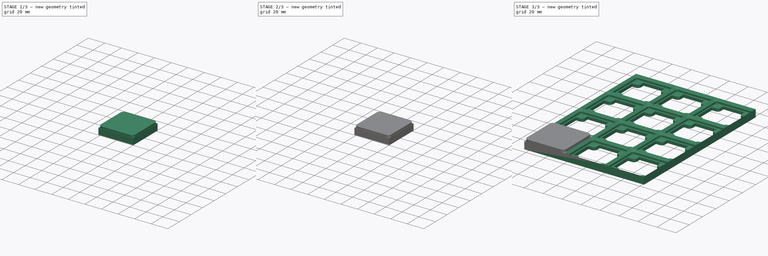
[diagram: build sequence overview — one tinted view per stage of 3, left to right]
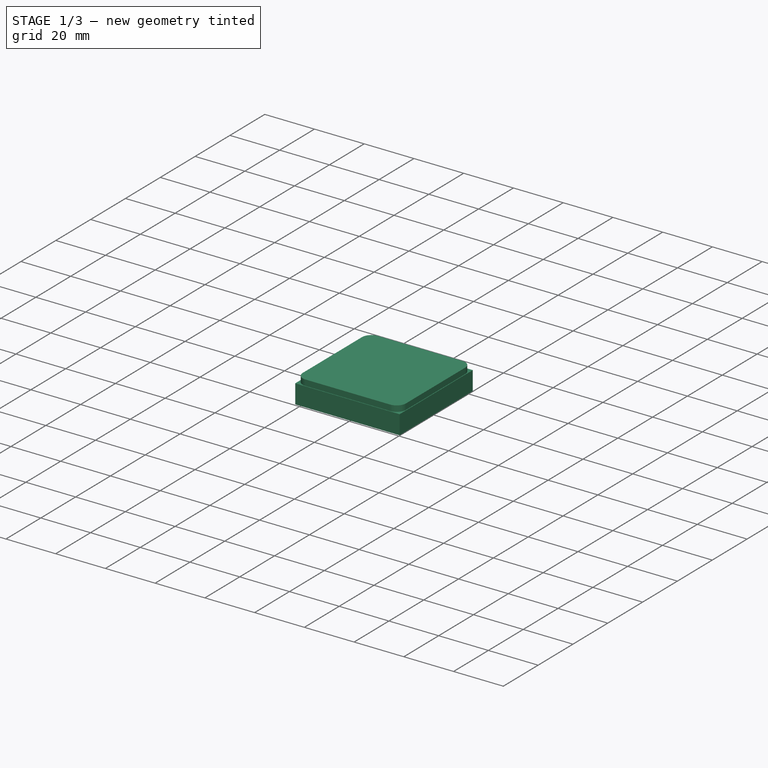
[diagram: stage 1 of 3 — iso view after this stage's code; geometry added in this stage tinted green]
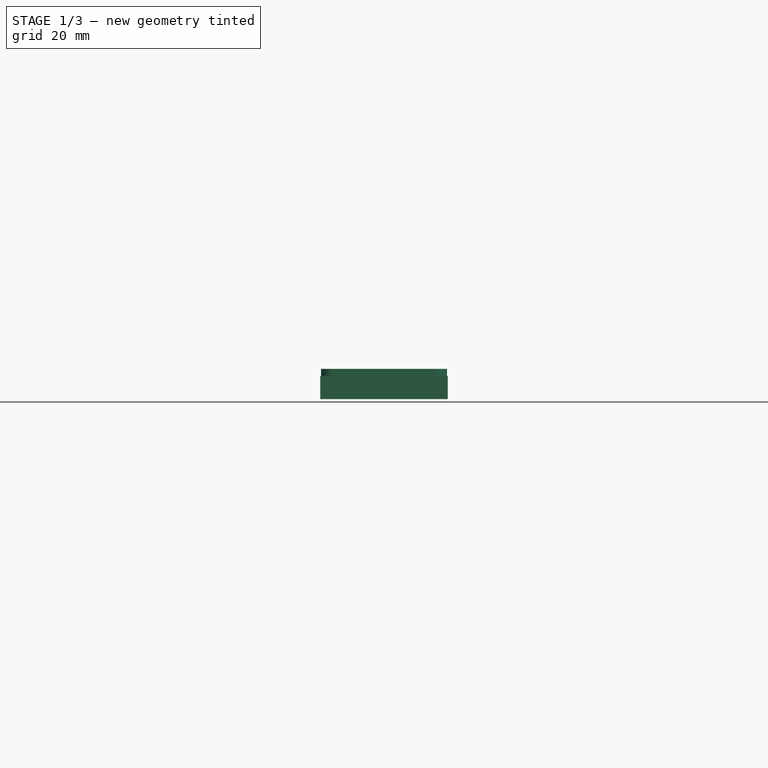
[diagram: stage 1 of 3 — front view after this stage's code; geometry added in this stage tinted green]
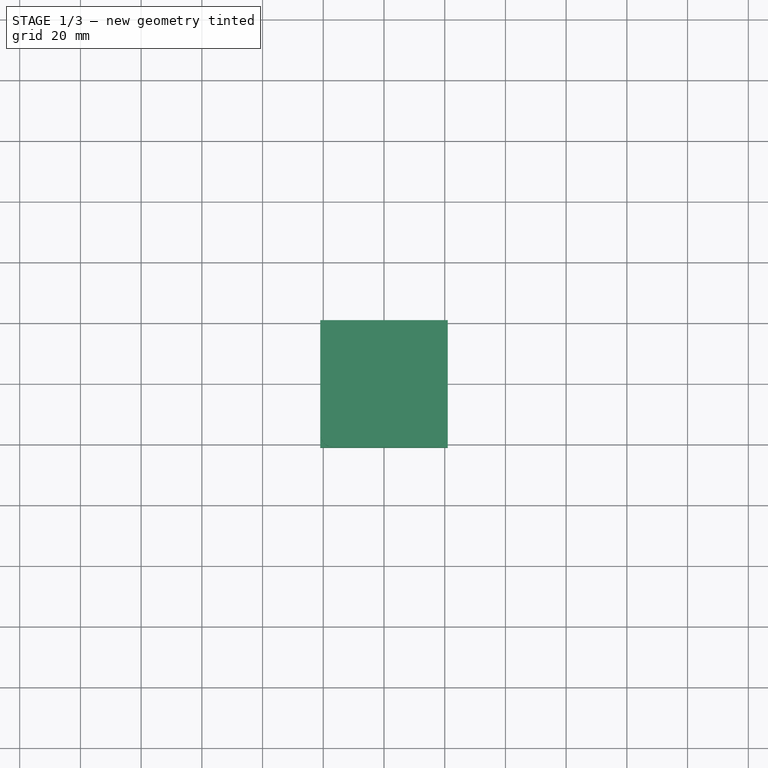
[diagram: stage 1 of 3 — top view after this stage's code; geometry added in this stage tinted green]
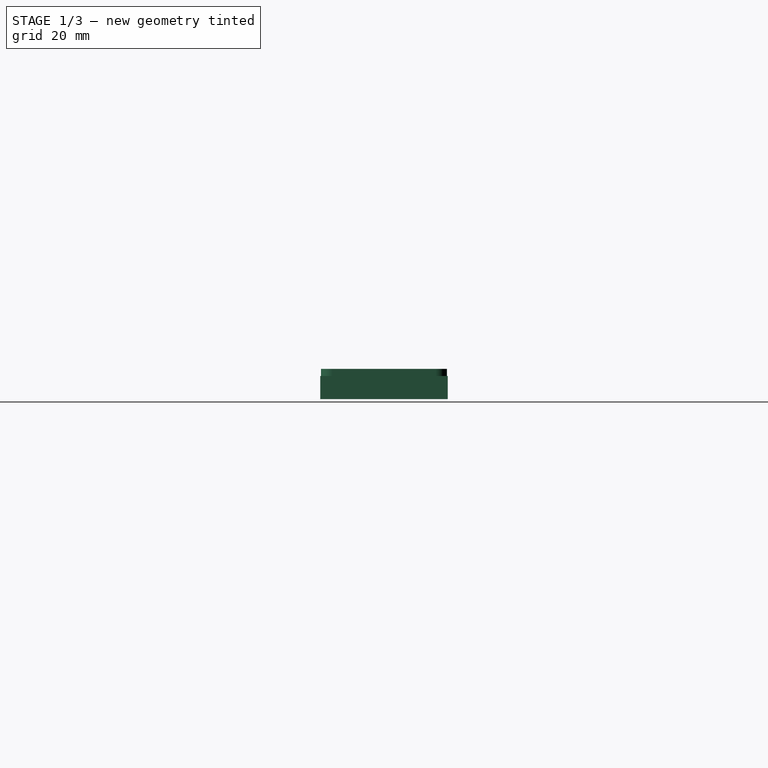
[diagram: stage 1 of 3 — right view after this stage's code; geometry added in this stage tinted green]
FCSTD DOCUMENT  (FreeCAD 1.0R38806 (Git))
Label: GridFinity_001
License: All rights reserved
LicenseURL: http://en.wikipedia.org/wiki/All_rights_reserved
objects: Sketcher::SketchObject×5, App::VarSet×2, PartDesign::Pad×2, PartDesign::LinearPattern×2, PartDesign::Body×2, PartDesign::Pocket×1, PartDesign::SubtractivePipe×1, PartDesign::MultiTransform×1, App::Part×1
note: 30 computed .brp shape members not serialized (recipe doc carries the construction recipe); baked Part::Feature solids carry a one-line shape summary decoded from their .brp

FEATURE [App::VarSet] VarSet
  Base_BaseGridX = 4
  Base_BaseGridY = 3
  Base_Base_Height = 42
  Base_Base_Width = 42
  Base_BottomHeight = 3
  Base_ProfileMiddle = 1.8
  Base_Profile_Angle = 45
  Base_Profile_Lower = 0.7
  Base_Profile_top = 2.15
  expr: Base_Base_Width = Base_Base_Height
FEATURE [Sketcher::SketchObject] Sketch
  ArcFitTolerance = 1e-06
  AttachmentSupport = -> [XY_Plane001]
  FullyConstrained = true
  MakeInternals = false
  MapMode = 5
  expr: Constraints[10] = VarSet.Base_Base_Height
  expr: Constraints[9] = VarSet.Base_Base_Width
  sketch-geometry (25):
    g0: LineSegment StartX=-21 StartY=-21 StartZ=0 EndX=21 EndY=-21 EndZ=0
    g1: LineSegment StartX=21 StartY=-21 StartZ=0 EndX=21 EndY=21 EndZ=0
    g2: LineSegment StartX=21 StartY=21 StartZ=0 EndX=-21 EndY=21 EndZ=0
    g3: LineSegment StartX=-21 StartY=21 StartZ=0 EndX=-21 EndY=-21 EndZ=0
    g4: GeomPoint [constr] X=0 Y=0 Z=0
    g5: LineSegment StartX=-18.15 StartY=11 StartZ=0 EndX=-14 EndY=11 EndZ=0
    g6: LineSegment StartX=-11 StartY=14 StartZ=0 EndX=-11 EndY=18.15 EndZ=0
    g7: LineSegment StartX=-11 StartY=18.15 StartZ=0 EndX=11 EndY=18.15 EndZ=0
    g8: LineSegment StartX=11 StartY=18.15 StartZ=0 EndX=11 EndY=14 EndZ=0
    g9: LineSegment StartX=14 StartY=11 StartZ=0 EndX=18.15 EndY=11 EndZ=0
    g10: LineSegment StartX=18.15 StartY=11 StartZ=0 EndX=18.15 EndY=-11 EndZ=0
    g11: LineSegment StartX=18.15 StartY=-11 StartZ=0 EndX=14 EndY=-11 EndZ=0
    g12: LineSegment StartX=11 StartY=-14 StartZ=0 EndX=11 EndY=-18.15 EndZ=0
    g13: LineSegment StartX=11 StartY=-18.15 StartZ=0 EndX=-11 EndY=-18.15 EndZ=0
    g14: LineSegment StartX=-11 StartY=-18.15 StartZ=0 EndX=-11 EndY=-14 EndZ=0
    g15: LineSegment StartX=-14 StartY=-11 StartZ=0 EndX=-18.15 EndY=-11 EndZ=0
    g16: LineSegment StartX=-18.15 StartY=-11 StartZ=0 EndX=-18.15 EndY=11 EndZ=0
    g17: ArcOfCircle CenterX=-14 CenterY=14 CenterZ=0 NormalX=0 NormalY=0 NormalZ=1 AngleXU=0 Radius=3 StartAngle=4.71239 EndAngle=6.28319
    g18: GeomPoint [constr] X=-11 Y=11 Z=0
    g19: ArcOfCircle CenterX=14 CenterY=14 CenterZ=0 NormalX=0 NormalY=0 NormalZ=1 AngleXU=0 Radius=3 StartAngle=3.14159 EndAngle=4.71239
    g20: GeomPoint [constr] X=11 Y=11 Z=0
    g21: ArcOfCircle CenterX=14 CenterY=-14 CenterZ=0 NormalX=0 NormalY=0 NormalZ=1 AngleXU=0 Radius=3 StartAngle=1.5708 EndAngle=3.14159
    g22: GeomPoint [constr] X=11 Y=-11 Z=0
    g23: ArcOfCircle CenterX=-14 CenterY=-14 CenterZ=0 NormalX=0 NormalY=0 NormalZ=1 AngleXU=0 Radius=3 StartAngle=0 EndAngle=1.5708
    g24: GeomPoint [constr] X=-11 Y=-11 Z=0
  constraints (63):
    c: Coincident(g0,g1)
    c: Coincident(g1,g2)
    c: Coincident(g2,g3)
    c: Coincident(g3,g0)
    c: Horizontal(g0)
    c: Horizontal(g2)
    c: Vertical(g1)
    c: Vertical(g3)
    c: Symmetric(g2,g0,g4)
    c: Distance(g1,g3) = 42
    c: Distance(g0,g2) = 42
    c: Coincident(g4,g-1)
    c: Horizontal(g5)
    c: Vertical(g6)
    c: Coincident(g6,g7)
    c: Horizontal(g7)
    c: Coincident(g7,g8)
    c: Vertical(g8)
    c: Horizontal(g9)
    c: Coincident(g9,g10)
    c: Coincident(g10,g11)
    c: Horizontal(g11)
    c: Vertical(g12)
    c: Coincident(g12,g13)
    c: Horizontal(g13)
    c: Coincident(g13,g14)
    c: Vertical(g14)
    c: Horizontal(g15)
    c: Coincident(g15,g16)
    c: Coincident(g16,g5)
    c: Vertical(g16)
    c: Vertical(g10)
    c: Equal(g7,g16)
    c: Equal(g10,g13)
    c: Symmetric(g24,g20,g4)
    c: DistanceX(g0,g15) = 2.85
    c: DistanceX(g2,g6) = 10
    c: PointOnObject(g18,g6)
    c: PointOnObject(g18,g5)
    c: Tangent(g6,g17) = -1.5708
    c: Tangent(g5,g17) = -1.5708
    c: PointOnObject(g20,g8)
    c: PointOnObject(g20,g9)
    c: Tangent(g8,g19) = -1.5708
    c: Tangent(g9,g19) = -1.5708
    c: PointOnObject(g22,g11)
    c: PointOnObject(g22,g12)
    c: Tangent(g11,g21) = -1.5708
    c: Tangent(g12,g21) = -1.5708
    c: PointOnObject(g24,g14)
    c: PointOnObject(g24,g15)
    c: Tangent(g14,g23) = -1.5708
    c: Tangent(g15,g23) = -1.5708
    c: Equal(g17,g19)
    c: Equal(g19,g23)
    c: Equal(g23,g21)
    c: Radius(g23) = 3
    c: Equal(g6,g8)
    c: Equal(g8,g5)
    c: Equal(g5,g9)
    c: Equal(g9,g11)
    c: Equal(g11,g12)
    c: Equal(g12,g14)
FEATURE [PartDesign::Pad] Pad
  Direction = (0,0,1)
  Length = 7.65
  Length2 = 10
  Profile = -> Sketch
  ReferenceAxis = -> Sketch [N_Axis]
  Refine = true
  Suppressed = false
  Type = 0
  expr: Length = VarSet.Base_BottomHeight + VarSet.Base_Profile_Lower + VarSet.Base_ProfileMiddle + VarSet.Base_Profile_top
FEATURE [PartDesign::Body] Body  label="Base"
  AllowCompound = true
  Group = -> [Sketch,Pad,Sketch001,Pocket,Sketch002,Sketch003,SubtractivePipe,MultiTransform,LinearPattern,LinearPattern001,VarSet]
  Origin = -> Origin001
  Tip = -> MultiTransform
FEATURE [App::VarSet] VarSet001
  Height = 41.5
FEATURE [Sketcher::SketchObject] Sketch004
  ArcFitTolerance = 1e-06
  AttachmentSupport = -> [XY_Plane002]
  FullyConstrained = true
  MakeInternals = false
  MapMode = 5
  sketch-geometry (10):
    g0: LineSegment StartX=-17 StartY=-20.75 StartZ=0 EndX=17 EndY=-20.75 EndZ=0
    g1: LineSegment StartX=20.75 StartY=-17 StartZ=0 EndX=20.75 EndY=17 EndZ=0
    g2: LineSegment StartX=17 StartY=20.75 StartZ=0 EndX=-17 EndY=20.75 EndZ=0
    g3: LineSegment StartX=-20.75 StartY=17 StartZ=0 EndX=-20.75 EndY=-17 EndZ=0
    g4: ArcOfCircle CenterX=-17 CenterY=-17 CenterZ=0 NormalX=0 NormalY=0 NormalZ=1 AngleXU=0 Radius=3.75 StartAngle=3.14159 EndAngle=4.71239
    g5: ArcOfCircle CenterX=17 CenterY=-17 CenterZ=0 NormalX=0 NormalY=0 NormalZ=1 AngleXU=0 Radius=3.75 StartAngle=4.71239 EndAngle=6.28319
    g6: ArcOfCircle CenterX=17 CenterY=17 CenterZ=0 NormalX=0 NormalY=0 NormalZ=1 AngleXU=0 Radius=3.75 StartAngle=0 EndAngle=1.5708
    g7: ArcOfCircle CenterX=-17 CenterY=17 CenterZ=0 NormalX=0 NormalY=0 NormalZ=1 AngleXU=0 Radius=3.75 StartAngle=1.5708 EndAngle=3.14159
    g8: GeomPoint [constr] X=20.75 Y=20.75 Z=0
    g9: GeomPoint [constr] X=8.81e-14 Y=1e-13 Z=0
  constraints (22):
    c: Tangent(g0,g4) = -1.5708
    c: Tangent(g0,g5) = -1.5708
    c: Tangent(g1,g5) = -1.5708
    c: Tangent(g1,g6) = -1.5708
    c: Tangent(g2,g6) = -1.5708
    c: Tangent(g2,g7) = -1.5708
    c: Tangent(g3,g7) = -1.5708
    c: Tangent(g3,g4) = -1.5708
    c: Horizontal(g0)
    c: Horizontal(g2)
    c: Vertical(g1)
    c: Vertical(g3)
    c: Equal(g4,g5)
    c: Equal(g5,g6)
    c: Equal(g6,g7)
    c: Symmetric(g2,g0,g9)
    c: PointOnObject(g8,g1)
    c: PointOnObject(g8,g2)
    c: Distance(g1,g3) = 41.5
    c: Radius(g5) = 3.75
    c: Coincident(g9,g-1)
    c: Equal(g3,g0)
FEATURE [PartDesign::Pad] Pad001
  Direction = (0,0,1)
  Length = 10
  Length2 = 10
  Profile = -> Sketch004
  ReferenceAxis = -> Sketch004 [N_Axis]
  Refine = true
  Suppressed = false
  Type = 0
FEATURE [PartDesign::Body] Body001  label="Bin"
  AllowCompound = true
  Group = -> [VarSet001,Sketch004,Pad001]
  Origin = -> Origin002
  Tip = -> Pad001
FEATURE [App::Part] Part
  Group = -> [Body,Body001]
  Origin = -> Origin
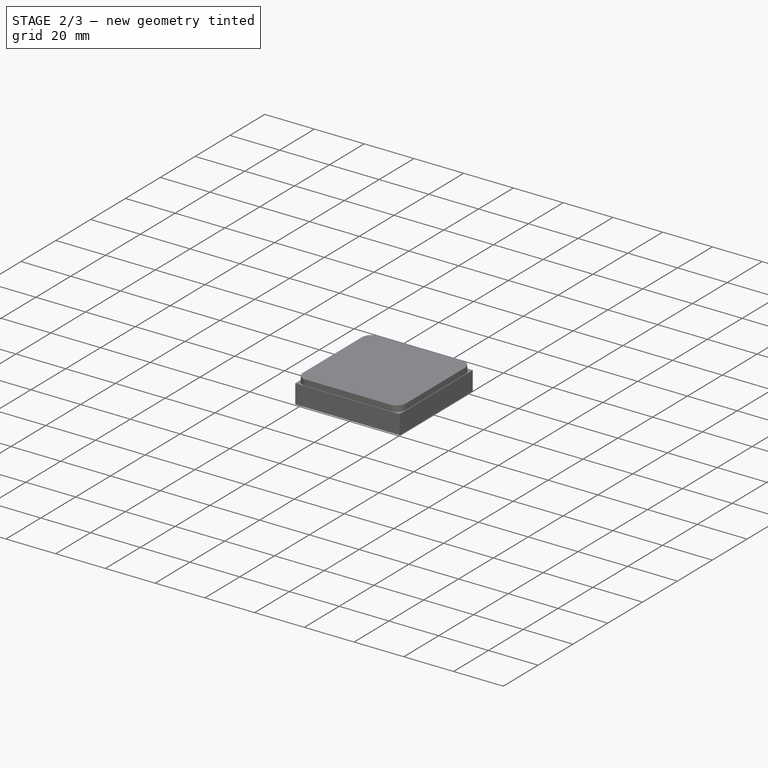
[diagram: stage 2 of 3 — iso view after this stage's code; geometry added in this stage tinted green]
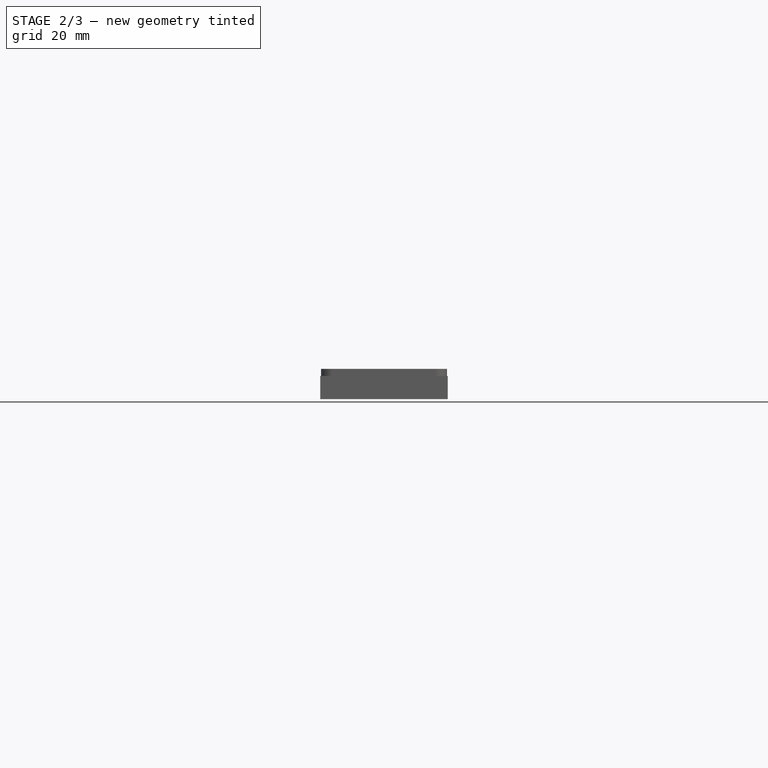
[diagram: stage 2 of 3 — front view after this stage's code; geometry added in this stage tinted green]
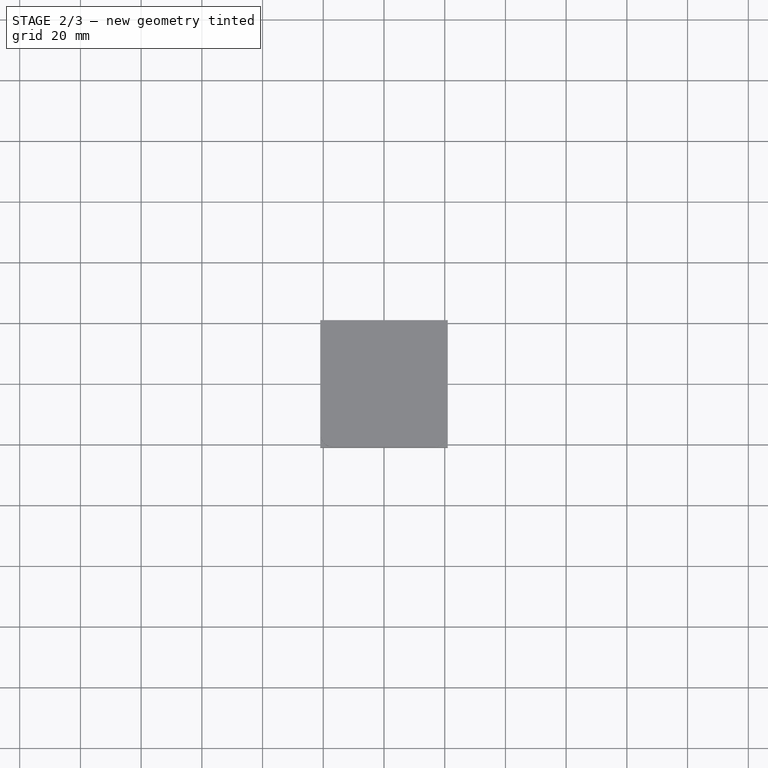
[diagram: stage 2 of 3 — top view after this stage's code; geometry added in this stage tinted green]
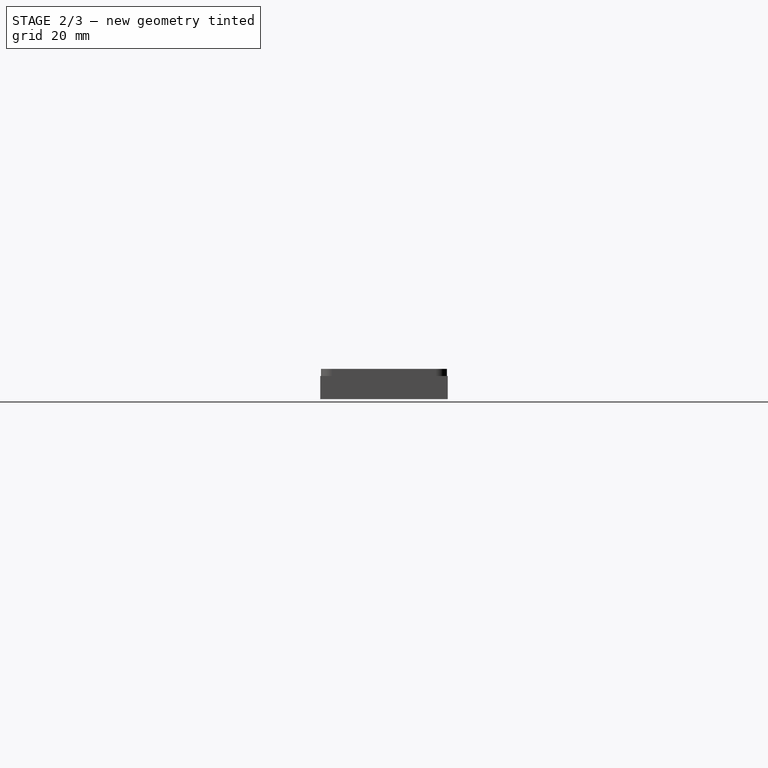
[diagram: stage 2 of 3 — right view after this stage's code; geometry added in this stage tinted green]
FEATURE [Sketcher::SketchObject] Sketch001
  ArcFitTolerance = 1e-06
  AttachmentOffset = pos=(0,0,3) rot=(0,0,1;0rad)
  AttachmentSupport = -> [XY_Plane001]
  FullyConstrained = true
  MakeInternals = false
  MapMode = 5
  Placement = pos=(0,0,3) rot=(0,0,1;0rad)
  expr: Constraints[10] = 42 / 2 - 2.85
  sketch-geometry (5):
    g0: LineSegment StartX=-18.15 StartY=-18.15 StartZ=0 EndX=18.15 EndY=-18.15 EndZ=0
    g1: LineSegment StartX=18.15 StartY=-18.15 StartZ=0 EndX=18.15 EndY=18.15 EndZ=0
    g2: LineSegment StartX=18.15 StartY=18.15 StartZ=0 EndX=-18.15 EndY=18.15 EndZ=0
    g3: LineSegment StartX=-18.15 StartY=18.15 StartZ=0 EndX=-18.15 EndY=-18.15 EndZ=0
    g4: GeomPoint [constr] X=0 Y=0 Z=0
  constraints (12):
    c: Coincident(g0,g1)
    c: Coincident(g1,g2)
    c: Coincident(g2,g3)
    c: Coincident(g3,g0)
    c: Horizontal(g0)
    c: Horizontal(g2)
    c: Vertical(g1)
    c: Vertical(g3)
    c: Symmetric(g2,g0,g4)
    c: Coincident(g4,g-1)
    c: DistanceX(g4,g0) = 18.15
    c: Equal(g2,g1)
FEATURE [PartDesign::Pocket] Pocket
  BaseFeature = -> Pad
  Direction = (0,0,-1)
  Length = 5
  Length2 = 5
  Profile = -> Sketch001
  ReferenceAxis = -> Sketch001 [N_Axis]
  Refine = true
  Reversed = true
  Suppressed = false
  Type = 0
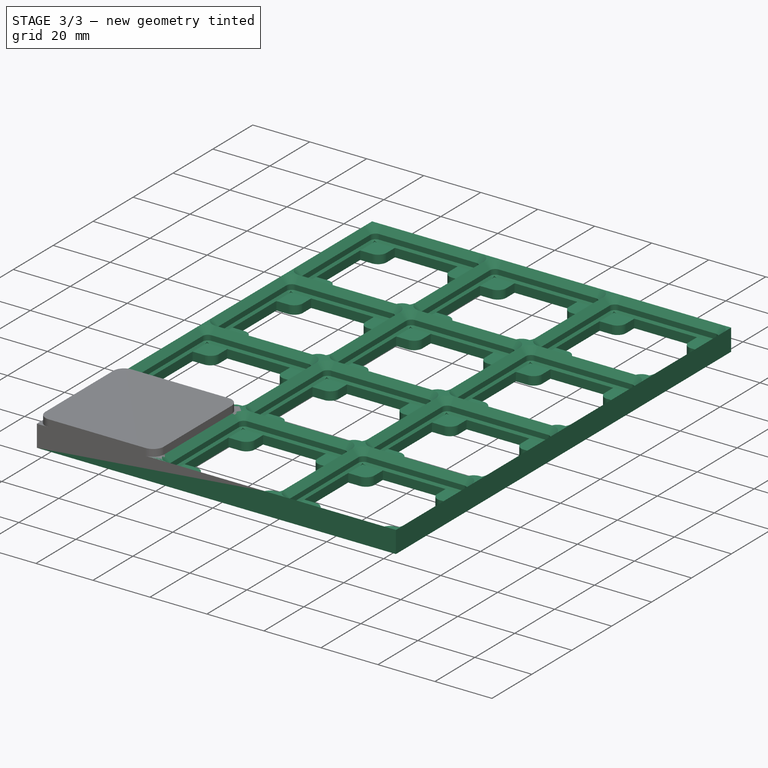
[diagram: stage 3 of 3 — iso view after this stage's code; geometry added in this stage tinted green]
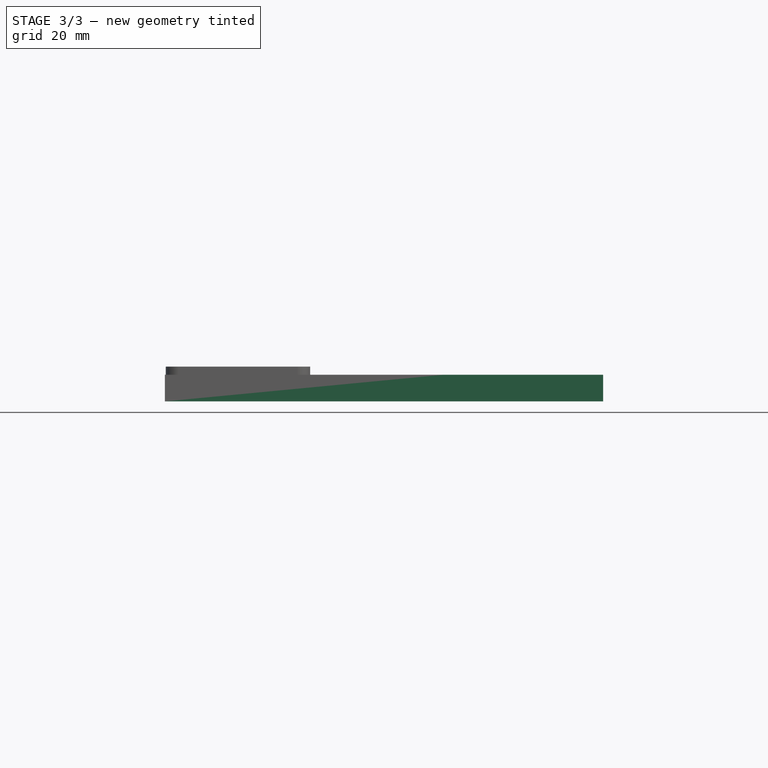
[diagram: stage 3 of 3 — front view after this stage's code; geometry added in this stage tinted green]
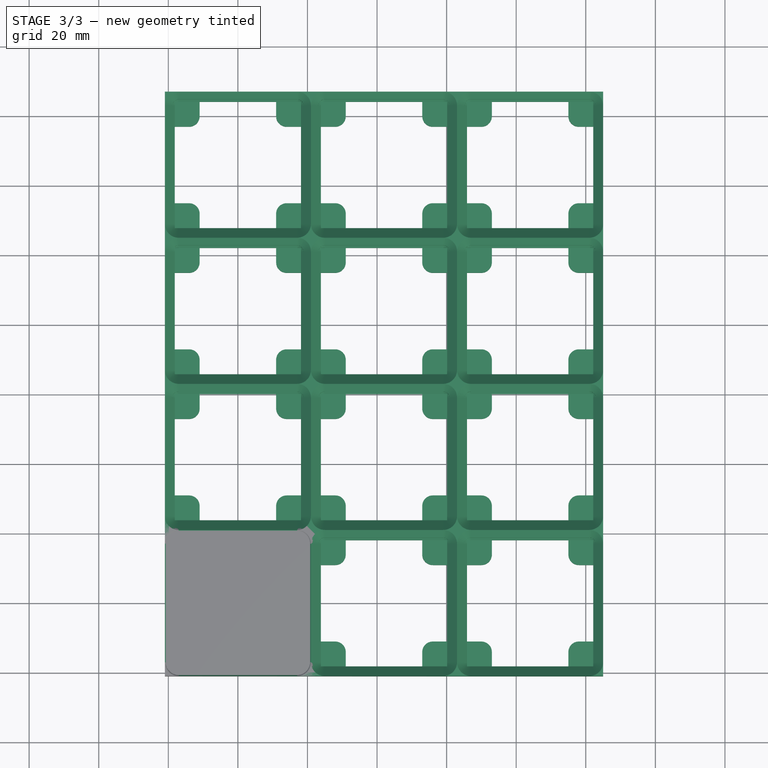
[diagram: stage 3 of 3 — top view after this stage's code; geometry added in this stage tinted green]
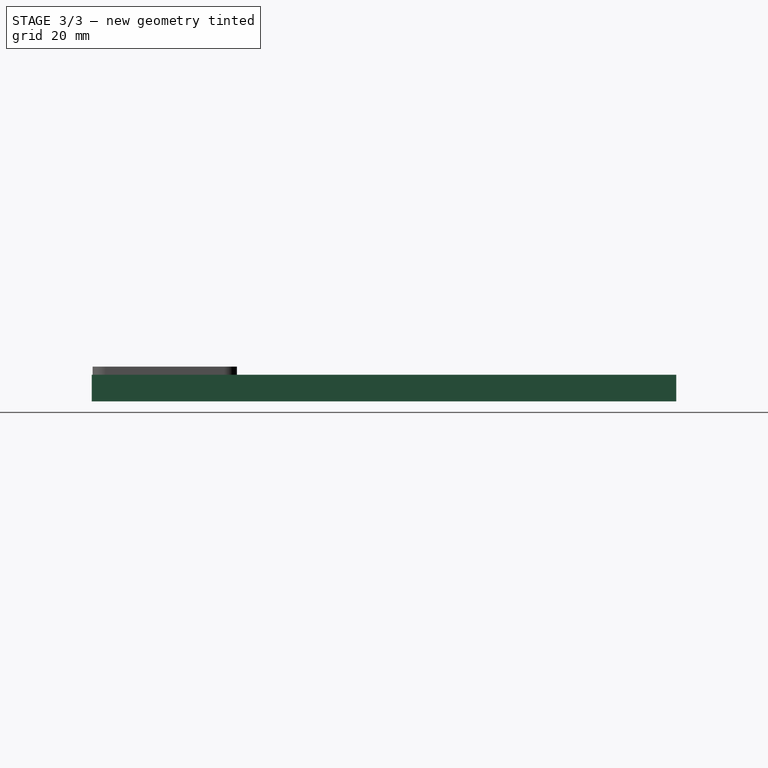
[diagram: stage 3 of 3 — right view after this stage's code; geometry added in this stage tinted green]
FEATURE [PartDesign::LinearPattern] LinearPattern
  Direction = -> Y_Axis001
  Length = 126
  Mode = 1
  Occurrences = 4
  Offset = 42
  Refine = true
  Suppressed = false
  TransformMode = 0
  expr: Occurrences = VarSet.Base_BaseGridX
  expr: Offset = VarSet.Base_Base_Height
FEATURE [PartDesign::LinearPattern] LinearPattern001
  Direction = -> X_Axis001
  Length = 84
  Mode = 1
  Occurrences = 3
  Offset = 42
  Refine = true
  Suppressed = false
  TransformMode = 0
  expr: Occurrences = VarSet.Base_BaseGridY
  expr: Offset = VarSet.Base_Base_Width
FEATURE [Sketcher::SketchObject] Sketch002
  ArcFitTolerance = 1e-06
  AttachmentSupport = -> [XZ_Plane001]
  ExternalGeometry = -> [Pocket]
  FullyConstrained = true
  MakeInternals = false
  MapMode = 5
  Placement = pos=(0,0,0) rot=(1,0,0;1.5708rad)
  sketch-geometry (5):
    g0: LineSegment StartX=21 StartY=7.65 StartZ=0 EndX=18.85 EndY=5.5 EndZ=0
    g1: LineSegment StartX=18.85 StartY=5.5 StartZ=0 EndX=18.85 EndY=3.7 EndZ=0
    g2: LineSegment StartX=18.85 StartY=3.7 StartZ=0 EndX=18.15 EndY=3 EndZ=0
    g3: LineSegment StartX=21 StartY=7.65 StartZ=0 EndX=18.15 EndY=7.65 EndZ=0
    g4: LineSegment StartX=18.15 StartY=7.65 StartZ=0 EndX=18.15 EndY=3 EndZ=0
  constraints (14):
    c: Coincident(g-3,g0)
    c: Coincident(g0,g1)
    c: Coincident(g1,g2)
    c: Coincident(g2,g-4)
    c: DistanceY(g0,g0) = 2.15
    c: Distance(g0,g1) = 1.8
    c: Vertical(g1)
    c: Parallel(g2,g0)
    c: DistanceY(g2,g1) = 0.7
    c: Coincident(g0,g3)
    c: Horizontal(g3)
    c: Coincident(g3,g4)
    c: Coincident(g4,g2)
    c: Vertical(g4)
FEATURE [Sketcher::SketchObject] Sketch003
  ArcFitTolerance = 1e-06
  AttachmentSupport = -> [XY_Plane001]
  FullyConstrained = true
  MakeInternals = false
  MapMode = 5
  sketch-geometry (10):
    g0: LineSegment StartX=-18.15 StartY=17 StartZ=0 EndX=-18.15 EndY=-17 EndZ=0
    g1: LineSegment StartX=-17 StartY=-18.15 StartZ=0 EndX=17 EndY=-18.15 EndZ=0
    g2: LineSegment StartX=18.15 StartY=-17 StartZ=0 EndX=18.15 EndY=17 EndZ=0
    g3: LineSegment StartX=17 StartY=18.15 StartZ=0 EndX=-17 EndY=18.15 EndZ=0
    g4: ArcOfCircle CenterX=-17 CenterY=17 CenterZ=0 NormalX=0 NormalY=0 NormalZ=1 AngleXU=0 Radius=1.15 StartAngle=1.5708 EndAngle=3.14159
    g5: ArcOfCircle CenterX=-17 CenterY=-17 CenterZ=0 NormalX=0 NormalY=0 NormalZ=1 AngleXU=0 Radius=1.15 StartAngle=3.14159 EndAngle=4.71239
    g6: ArcOfCircle CenterX=17 CenterY=-17 CenterZ=0 NormalX=0 NormalY=0 NormalZ=1 AngleXU=0 Radius=1.15 StartAngle=4.71239 EndAngle=6.28319
    g7: ArcOfCircle CenterX=17 CenterY=17 CenterZ=0 NormalX=0 NormalY=0 NormalZ=1 AngleXU=0 Radius=1.15 StartAngle=5e-16 EndAngle=1.5708
    g8: GeomPoint [constr] X=-18.15 Y=18.15 Z=0
    g9: GeomPoint [constr] X=18.15 Y=-18.15 Z=0
  constraints (23):
    c: Tangent(g0,g4) = -1.5708
    c: Tangent(g0,g5) = -1.5708
    c: Tangent(g1,g5) = -1.5708
    c: Tangent(g1,g6) = -1.5708
    c: Tangent(g2,g6) = -1.5708
    c: Tangent(g2,g7) = -1.5708
    c: Tangent(g3,g7) = -1.5708
    c: Tangent(g3,g4) = -1.5708
    c: Vertical(g0)
    c: Vertical(g2)
    c: Horizontal(g1)
    c: Horizontal(g3)
    c: Equal(g4,g5)
    c: Equal(g5,g6)
    c: Equal(g6,g7)
    c: PointOnObject(g8,g0)
    c: PointOnObject(g8,g3)
    c: PointOnObject(g9,g1)
    c: PointOnObject(g9,g2)
    c: Symmetric(g7,g5,g-1)
    c: Radius(g7) = 1.15
    c: Vertical(g-3,g2)
    c: Horizontal(g3,g-3)
FEATURE [PartDesign::SubtractivePipe] SubtractivePipe
  AuxilleryCurvelinear = true
  AuxillerySpineTangent = false
  BaseFeature = -> Pocket
  Binormal = (0,0,0)
  Mode = 0
  Profile = -> Sketch002
  Refine = true
  Spine = -> Sketch003
  SpineTangent = false
  Suppressed = false
  Transformation = 0
  Transition = 0
FEATURE [PartDesign::MultiTransform] MultiTransform
  BaseFeature = -> SubtractivePipe
  Originals = -> [Pad,Pocket,SubtractivePipe]
  Refine = true
  Suppressed = false
  TransformMode = 0
  Transformations = -> [LinearPattern,LinearPattern001]
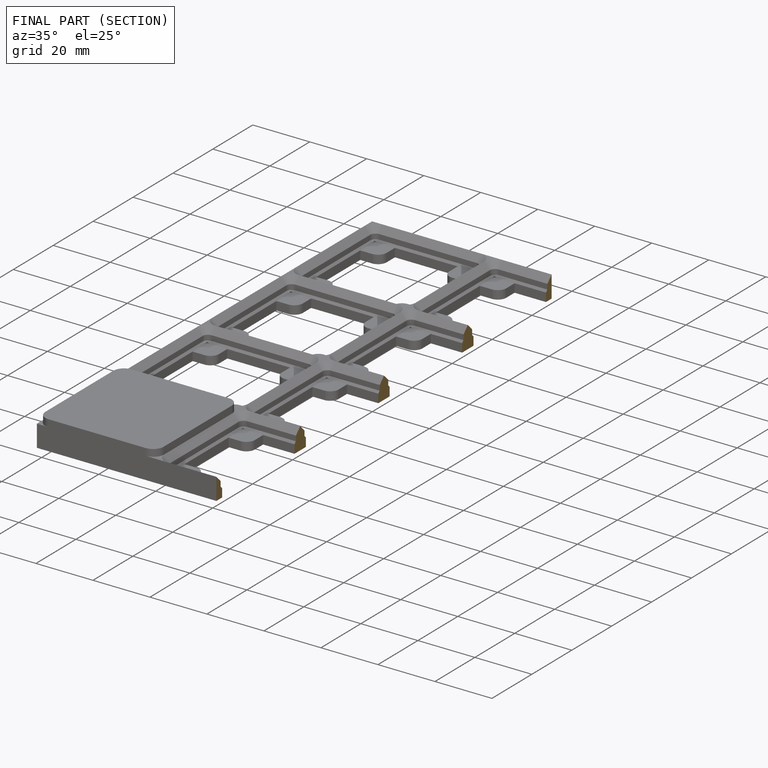
[diagram: finished part — half-section view (interior)]
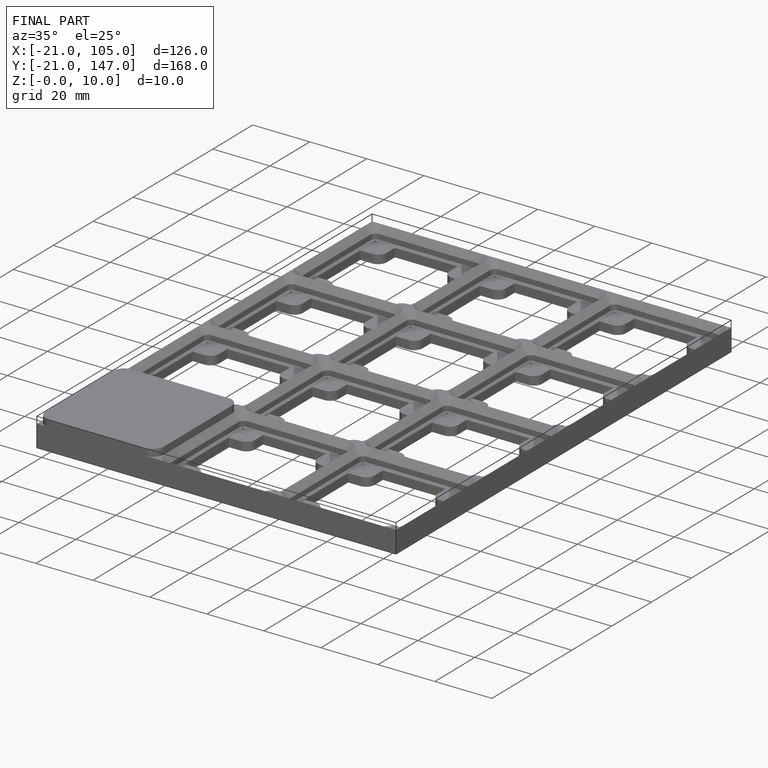
[diagram: finished part — iso view with bounding-box wireframe]
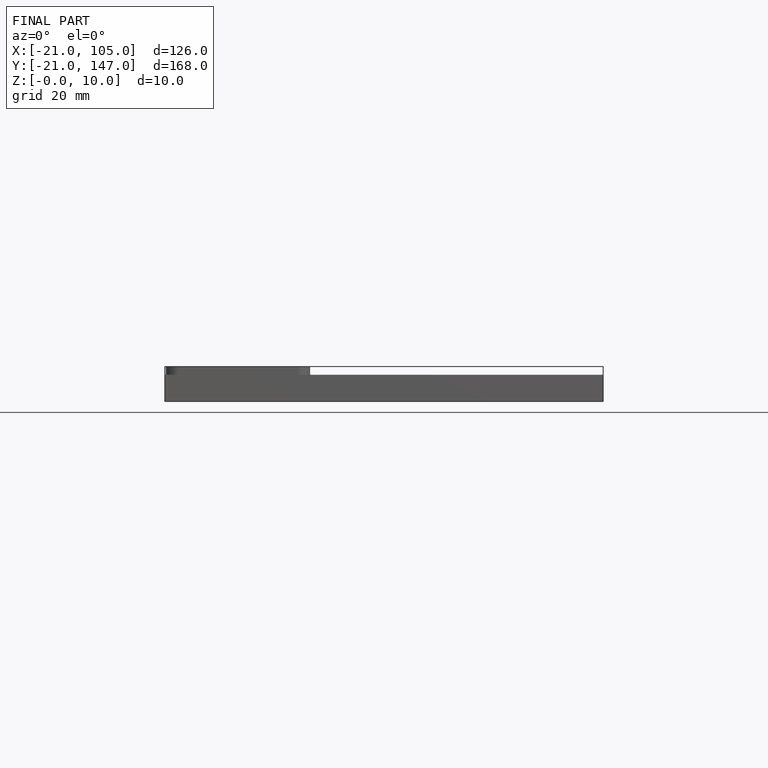
[diagram: finished part — front view with bounding-box wireframe]
